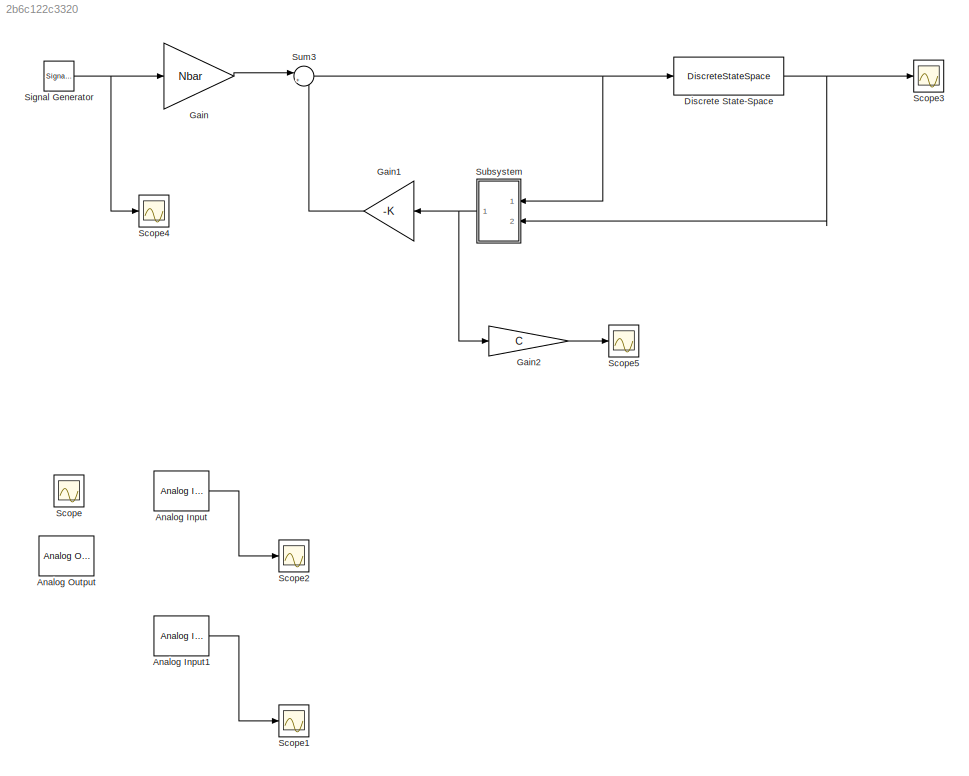
MODEL slx_2b6c122c3320
KIND model
CONFIG AbsTol = auto
CONFIG FixedStep = auto
CONFIG MaxStep = auto
CONFIG MinStep = auto
CONFIG RelTol = 1e-3
CONFIG SampleTimeConstraint = Unconstrained
CONFIG Solver = FixedStepDiscrete
CONFIG SolverMode = Auto
CONFIG SolverName = FixedStepDiscrete
CONFIG StartTime = 0.0
CONFIG StopTime = 20
BLOCK [Reference] Analog Input  REF=sldrtlib/Analog Input
  AttributesFormatString = National Instruments\nPCI-6221 [auto]
  Channels = 1
  DataType = 1
  DrvAddress = 4294967295
  DrvName = National_Instruments/PCI-6221
  DrvOptions = [0 0 0 0 0]
  MaxMissedTicks = 10
  Ports = [0, 1]
  RangeMode = 1
  SampleTime = 0.02
  ShowMissedTicks = off
  SourceBlock = sldrtlib/Analog Input
  SourceType = Simulink Desktop Real-Time Analog Input
  VoltRange = 1
  YieldWhenWaiting = off
BLOCK [Reference] Analog Input1  REF=sldrtlib/Analog Input
  AttributesFormatString = National Instruments\nPCI-6221 [auto]
  Channels = 2
  DataType = 1
  DrvAddress = 4294967295
  DrvName = National_Instruments/PCI-6221
  DrvOptions = [0 0 0 0 0]
  MaxMissedTicks = 10
  Ports = [0, 1]
  RangeMode = 1
  SampleTime = 0.02
  ShowMissedTicks = off
  SourceBlock = sldrtlib/Analog Input
  SourceType = Simulink Desktop Real-Time Analog Input
  VoltRange = 1
  YieldWhenWaiting = off
BLOCK [Reference] Analog Output  REF=sldrtlib/Analog Output
  AttributesFormatString = National Instruments\nPCI-6221 [auto]
  Channels = 1
  DrvAddress = 4294967295
  DrvName = National_Instruments/PCI-6221
  DrvOptions = [0 0 0 0 0]
  FinalValue = 0
  InitialValue = 0
  MaxMissedTicks = 10
  Ports = [1]
  RangeMode = 1
  SampleTime = 0.02
  ShowMissedTicks = off
  SourceBlock = sldrtlib/Analog Output
  SourceType = Simulink Desktop Real-Time Analog Output
  VoltRange = 1
  YieldWhenWaiting = off
BLOCK [DiscreteStateSpace] Discrete State-Space
  A = A
  B = B
  C = C
  D = D
  SampleTime = 0.02
BLOCK [Gain] Gain
  Gain = Nbar
  OutDataTypeStr = Inherit: Inherit via internal rule
  ParamDataTypeStr = Inherit: Inherit via internal rule
  SaturateOnIntegerOverflow = off
BLOCK [Gain] Gain1
  Gain = -K
  Multiplication = Matrix(K*u) (u vector)
  OutDataTypeStr = Inherit: Inherit via internal rule
  ParamDataTypeStr = Inherit: Inherit via internal rule
  SaturateOnIntegerOverflow = off
BLOCK [Gain] Gain2
  Gain = C
  Multiplication = Matrix(K*u) (u vector)
  OutDataTypeStr = Inherit: Inherit via internal rule
  ParamDataTypeStr = Inherit: Inherit via internal rule
  SaturateOnIntegerOverflow = off
BLOCK [Scope] Scope
  DataFormat = StructureWithTime
  Floating = off
  LimitDataPoints = off
  NumInputPorts = 1
  Ports = [1]
  SampleInput = on
  SaveName = input
  SaveToWorkspace = on
  TickLabels = on
  YMax = 10
  YMin = -10
  ZoomMode = xonly
BLOCK [Scope] Scope1
  DataFormat = StructureWithTime
  Floating = off
  LimitDataPoints = off
  NumInputPorts = 1
  Ports = [1]
  SampleInput = on
  SaveName = tensao_ext
  SaveToWorkspace = on
  ZoomMode = xonly
BLOCK [Scope] Scope2
  DataFormat = StructureWithTime
  Floating = off
  LimitDataPoints = off
  NumInputPorts = 1
  Ports = [1]
  SampleInput = on
  SaveName = tensao_pot
  SaveToWorkspace = on
  ZoomMode = xonly
BLOCK [Scope] Scope3
  DataFormat = StructureWithTime
  Floating = off
  NumInputPorts = 1
  Ports = [1]
  SaveName = y_simulado
  SaveToWorkspace = on
BLOCK [Scope] Scope4
  DataFormat = StructureWithTime
  Floating = off
  NumInputPorts = 1
  Ports = [1]
  SaveName = y_simulado1
BLOCK [Scope] Scope5
  DataFormat = StructureWithTime
  Floating = off
  NumInputPorts = 1
  Ports = [1]
  SaveName = y_simulado2
BLOCK [SignalGenerator] Signal Generator
  Frequency = 0.2
  Ports = [0, 1]
  WaveForm = square
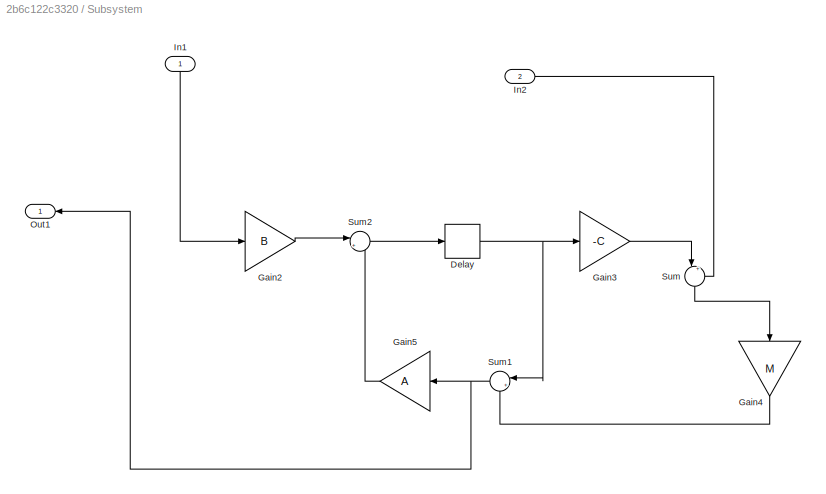
BLOCK [SubSystem] Subsystem
  Ports = [2, 1]
  RequestExecContextInheritance = off
BLOCK [Delay] Subsystem/Delay
  DelayLength = 1
  InitialCondition = 0
  InputPortMap = u0
  Ports = [1, 1]
BLOCK [Gain] Subsystem/Gain2
  Gain = B
  Multiplication = Matrix(K*u)
  OutDataTypeStr = Inherit: Inherit via internal rule
  ParamDataTypeStr = Inherit: Inherit via internal rule
  SaturateOnIntegerOverflow = off
BLOCK [Gain] Subsystem/Gain3
  Gain = -C
  Multiplication = Matrix(K*u) (u vector)
  OutDataTypeStr = Inherit: Inherit via internal rule
  ParamDataTypeStr = Inherit: Inherit via internal rule
  SaturateOnIntegerOverflow = off
BLOCK [Gain] Subsystem/Gain4
  Gain = M
  Multiplication = Matrix(K*u)
  OutDataTypeStr = Inherit: Inherit via internal rule
  ParamDataTypeStr = Inherit: Inherit via internal rule
  SaturateOnIntegerOverflow = off
BLOCK [Gain] Subsystem/Gain5
  Gain = A
  Multiplication = Matrix(K*u) (u vector)
  OutDataTypeStr = Inherit: Inherit via internal rule
  ParamDataTypeStr = Inherit: Inherit via internal rule
  SaturateOnIntegerOverflow = off
BLOCK [Inport] Subsystem/In1
  IconDisplay = Port number
BLOCK [Inport] Subsystem/In2
  IconDisplay = Port number
  Port = 2
BLOCK [Outport] Subsystem/Out1
  IconDisplay = Port number
BLOCK [Sum] Subsystem/Sum
  IconShape = round
  InputSameDT = off
  Inputs = |++
  OutDataTypeStr = Inherit: Inherit via internal rule
  Ports = [2, 1]
  SaturateOnIntegerOverflow = off
BLOCK [Sum] Subsystem/Sum1
  IconShape = round
  InputSameDT = off
  Inputs = |++
  OutDataTypeStr = Inherit: Inherit via internal rule
  Ports = [2, 1]
  SaturateOnIntegerOverflow = off
BLOCK [Sum] Subsystem/Sum2
  IconShape = round
  InputSameDT = off
  Inputs = |++
  OutDataTypeStr = Inherit: Inherit via internal rule
  Ports = [2, 1]
  SaturateOnIntegerOverflow = off
BLOCK [Sum] Sum3
  IconShape = round
  InputSameDT = off
  Inputs = |++
  OutDataTypeStr = Inherit: Inherit via internal rule
  Ports = [2, 1]
  SaturateOnIntegerOverflow = off
LINE Analog Input1:1 -> Scope1:1
LINE Analog Input:1 -> Scope2:1
NET Discrete State-Space:1 -> Scope3:1, Subsystem:2
LINE Gain1:1 -> Sum3:2
LINE Gain2:1 -> Scope5:1
LINE Gain:1 -> Sum3:1
NET Signal Generator:1 -> Gain:1, Scope4:1
NET Subsystem/Delay:1 -> Subsystem/Gain3:1, Subsystem/Sum1:1
LINE Subsystem/Gain2:1 -> Subsystem/Sum2:1
LINE Subsystem/Gain3:1 -> Subsystem/Sum:1
LINE Subsystem/Gain4:1 -> Subsystem/Sum1:2
LINE Subsystem/Gain5:1 -> Subsystem/Sum2:2
LINE Subsystem/In1:1 -> Subsystem/Gain2:1
LINE Subsystem/In2:1 -> Subsystem/Sum:2
NET Subsystem/Sum1:1 -> Subsystem/Gain5:1, Subsystem/Out1:1
LINE Subsystem/Sum2:1 -> Subsystem/Delay:1
LINE Subsystem/Sum:1 -> Subsystem/Gain4:1
NET Subsystem:1 -> Gain1:1, Gain2:1
NET Sum3:1 -> Discrete State-Space:1, Subsystem:1
note: NET lines group one-source signal fan-out (src -> all destinations, sorted); 1:1 wires keep LINE
